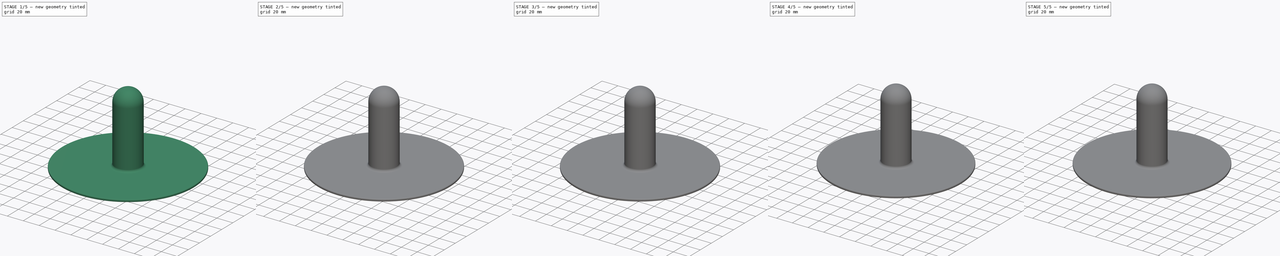
[diagram: build sequence overview — one tinted view per stage of 5, left to right]
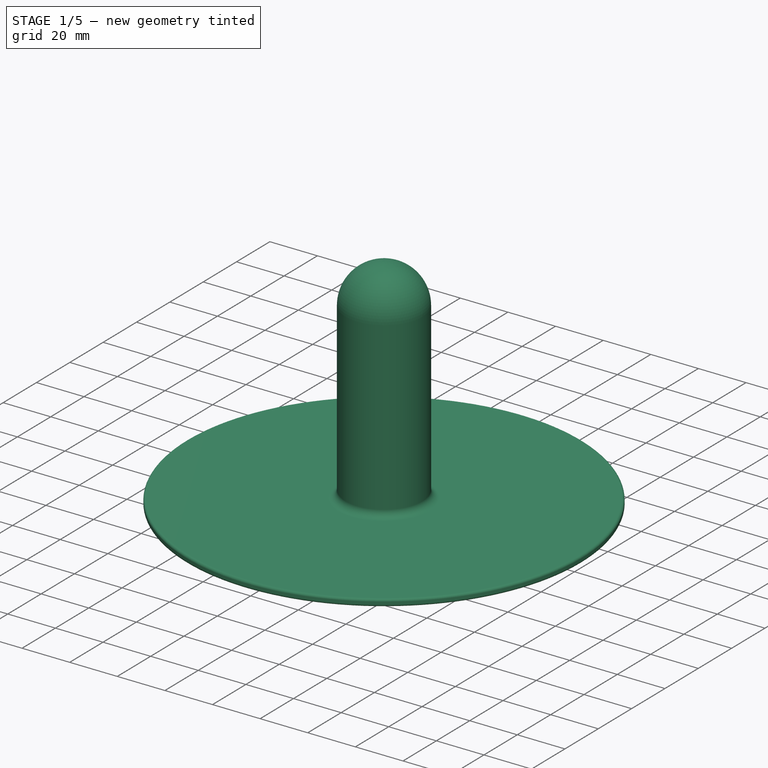
[diagram: stage 1 of 5 — iso view after this stage's code; geometry added in this stage tinted green]
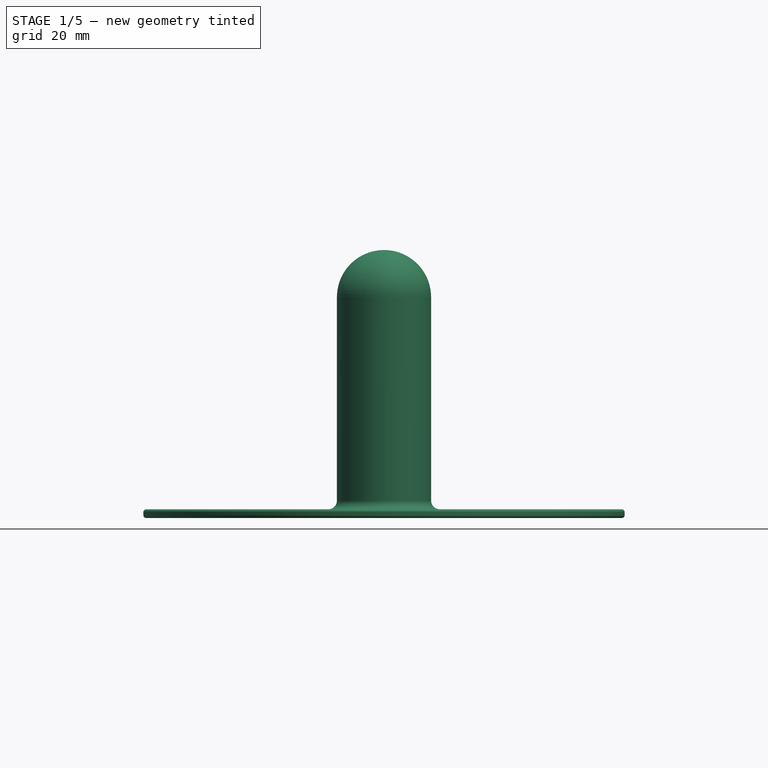
[diagram: stage 1 of 5 — front view after this stage's code; geometry added in this stage tinted green]
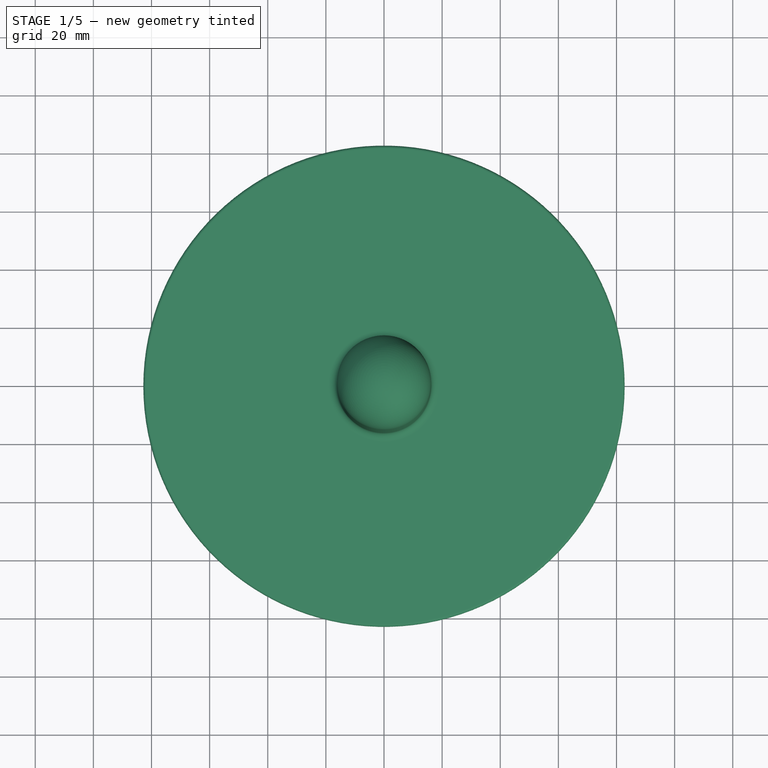
[diagram: stage 1 of 5 — top view after this stage's code; geometry added in this stage tinted green]
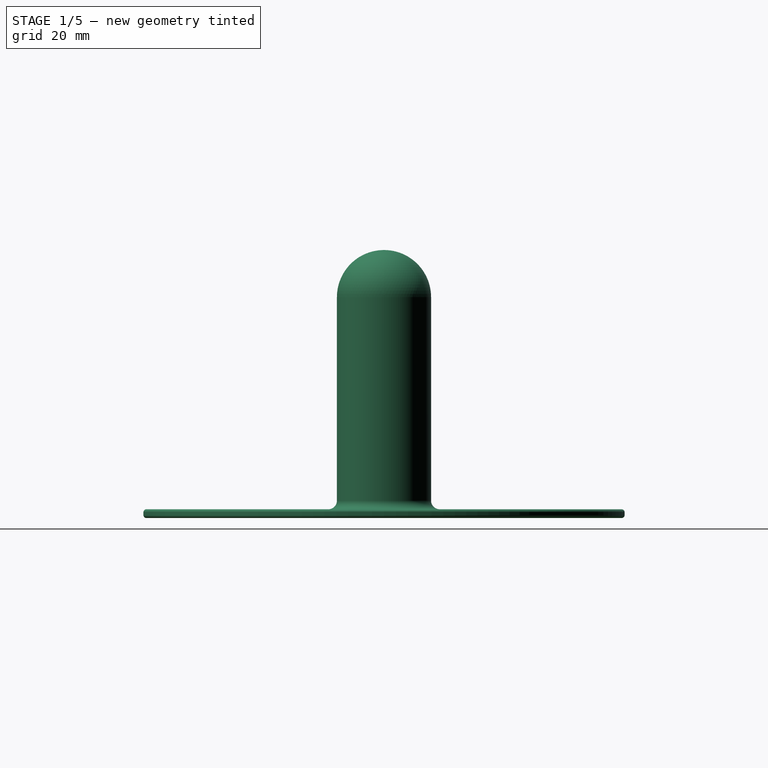
[diagram: stage 1 of 5 — right view after this stage's code; geometry added in this stage tinted green]
FCSTD DOCUMENT  (FreeCAD 0.16R6707 (Git))
Label: Spool Holder
License: Other
LicenseURL: http://ohwr.org/cernohl
objects: Sketcher::SketchObject×11, PartDesign::Pocket×6, PartDesign::Fillet×6, PartDesign::Pad×4, Part::FeaturePython×1, Part::Cylinder×1, Part::Feature×1, PartDesign::Revolution×1
note: 42 computed .brp shape members not serialized (recipe doc carries the construction recipe); baked Part::Feature solids carry a one-line shape summary decoded from their .brp

FEATURE [Part::Cylinder] Cylinder
  Angle = 360
  Height = 7
  Placement = pos=(0,0,22) rot=(0,0,1;0rad)
  Radius = 11
FEATURE [Part::Feature] Part__Feature  label="Acrylic_Cover_Center_Hole"
  Placement = pos=(0,0,3) rot=(0,0,1;0rad)
  shape: bbox 392 x 453 x 3 mm, 18 faces (baked)
FEATURE [Sketcher::SketchObject] Sketch010
  Placement = pos=(0,0,0) rot=(1,0,0;1.5708rad)
  sketch-geometry (13):
    g0: LineSegment StartX=0 StartY=79.2 StartZ=0 EndX=4.2 EndY=79.2 EndZ=0
    g1: LineSegment StartX=4.2 StartY=79.2 StartZ=0 EndX=4.2 EndY=29.2 EndZ=0
    g2: LineSegment StartX=4.2 StartY=29.2 StartZ=0 EndX=11.1 EndY=29.2 EndZ=0
    g3: LineSegment StartX=11.1 StartY=29.2 StartZ=0 EndX=11.1 EndY=14.2 EndZ=0
    g4: LineSegment StartX=11.1 StartY=14.2 StartZ=0 EndX=12.8 EndY=14.2 EndZ=0
    g5: LineSegment StartX=12.8 StartY=14.2 StartZ=0 EndX=12.8 EndY=7 EndZ=0
    g6: LineSegment StartX=12.8 StartY=7 StartZ=0 EndX=82.8 EndY=7 EndZ=0
    g7: LineSegment StartX=82.8 StartY=7 StartZ=0 EndX=82.8 EndY=10 EndZ=0
    g8: LineSegment StartX=82.8 StartY=10 StartZ=0 EndX=16.2 EndY=10 EndZ=0
    g9: LineSegment StartX=16.2 StartY=10 StartZ=0 EndX=16.2 EndY=83 EndZ=0
    g10: LineSegment StartX=0 StartY=79.2 StartZ=0 EndX=0 EndY=99.2 EndZ=0
    g11: LineSegment [constr] StartX=0 StartY=83 StartZ=0 EndX=16.2 EndY=83 EndZ=0
    g12: ArcOfCircle CenterX=0 CenterY=83 CenterZ=0 NormalX=0 NormalY=0 NormalZ=1 Radius=16.2 StartAngle=0 EndAngle=1.5708
  constraints (39):
    c: PointOnObject(g0,g-2)
    c: Horizontal(g0)
    c: Coincident(g0,g1)
    c: Vertical(g1)
    c: Coincident(g1,g2)
    c: Coincident(g2,g3)
    c: Coincident(g3,g4)
    c: Coincident(g4,g5)
    c: Vertical(g5)
    c: Coincident(g5,g6)
    c: Horizontal(g6)
    c: Coincident(g6,g7)
    c: Coincident(g7,g8)
    c: Horizontal(g8)
    c: Vertical(g9)
    c: Coincident(g10,g0)
    c: PointOnObject(g10,g-2)
    c: Coincident(g11,g9)
    c: Horizontal(g11)
    c: Vertical(g7)
    c: DistanceY(g7,g7) = 3
    c: Horizontal(g2)
    c: Vertical(g3)
    c: Horizontal(g4)
    c: DistanceY(g-1,g5) = 7
    c: DistanceX(g-1,g3) = 11.1
    c: DistanceY(g-1,g2) = 29.2
    c: DistanceX(g-1,g5) = 12.8
    c: DistanceY(g3,g3) = 15
    c: DistanceY(g1,g1) = 50
    c: DistanceX(g0,g0) = 4.2
    c: DistanceY(g10,g10) = 20
    c: DistanceX(g6,g6) = 70
    c: PointOnObject(g11,g10)
    c: Coincident(g12,g11)
    c: Coincident(g12,g10)
    c: Coincident(g12,g9)
    c: DistanceX(g0,g9) = 12
    c: Coincident(g8,g9)
FEATURE [PartDesign::Revolution] Revolution
  Angle = 360
  Axis = (0,0,1)
  Base = (0,0,0)
  Placement = pos=(0,0,0) rot=(1,0,0;1.5708rad)
  ReferenceAxis = -> Sketch010 [V_Axis]
  Reversed = true
  Sketch = -> Sketch010
FEATURE [PartDesign::Fillet] Fillet004
  Base = -> Revolution [Edge13]
  Placement = pos=(0,0,0) rot=(1,0,0;1.5708rad)
  Radius = 3
FEATURE [PartDesign::Fillet] Fillet005
  Base = -> Fillet004 [Edge2,Edge5]
  Placement = pos=(0,0,0) rot=(1,0,0;1.5708rad)
  Radius = 1
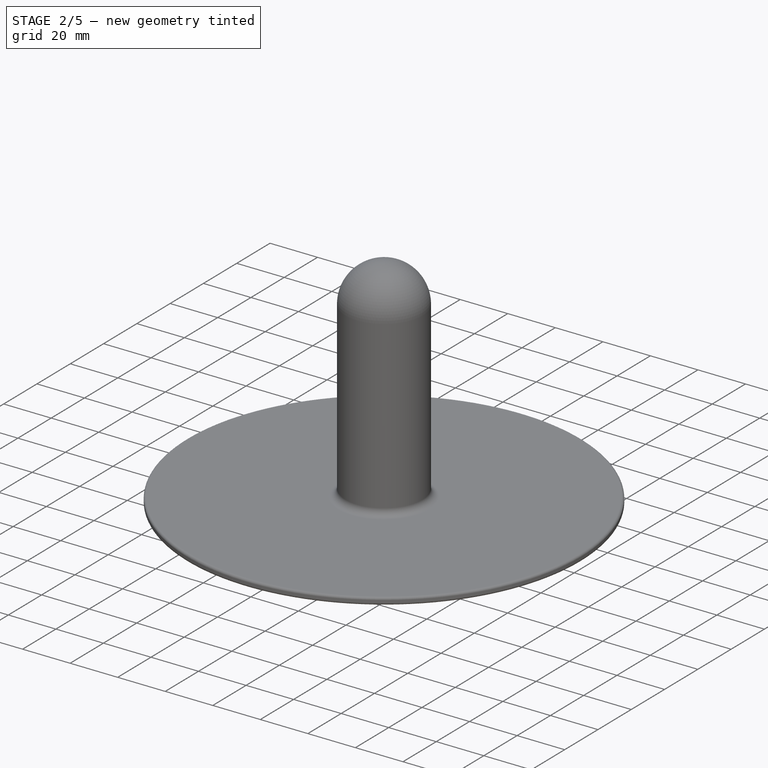
[diagram: stage 2 of 5 — iso view after this stage's code; geometry added in this stage tinted green]
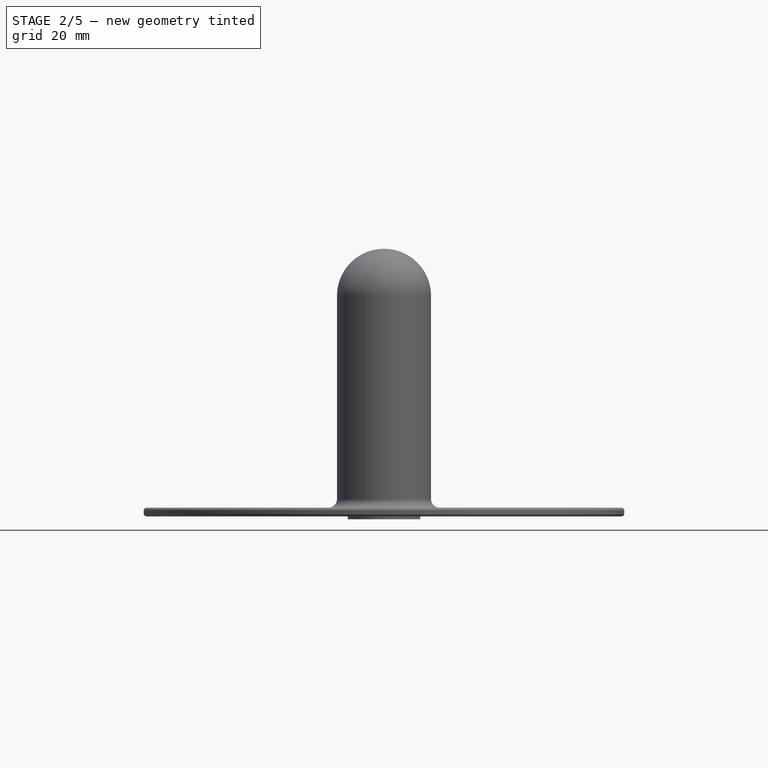
[diagram: stage 2 of 5 — front view after this stage's code; geometry added in this stage tinted green]
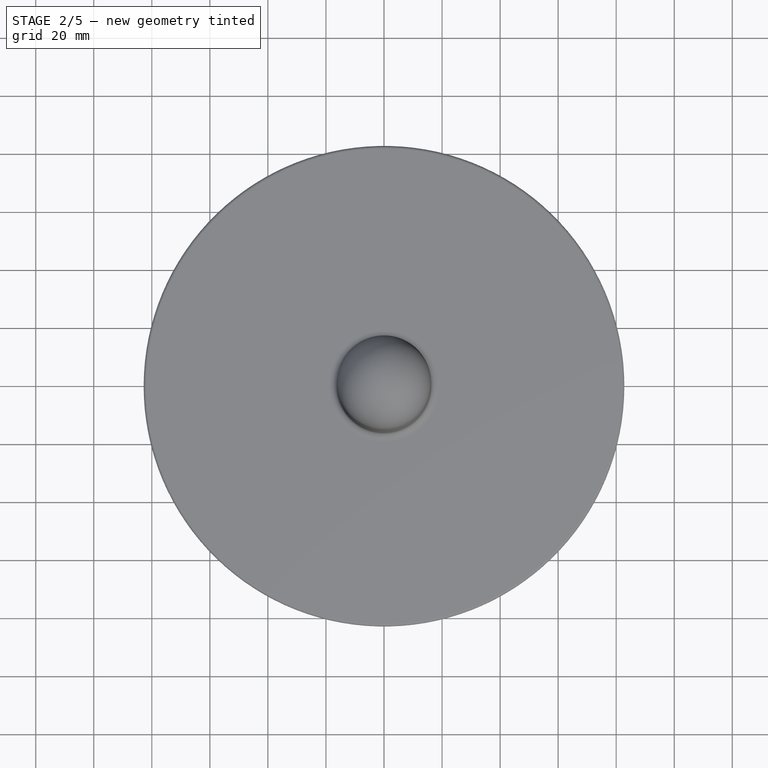
[diagram: stage 2 of 5 — top view after this stage's code; geometry added in this stage tinted green]
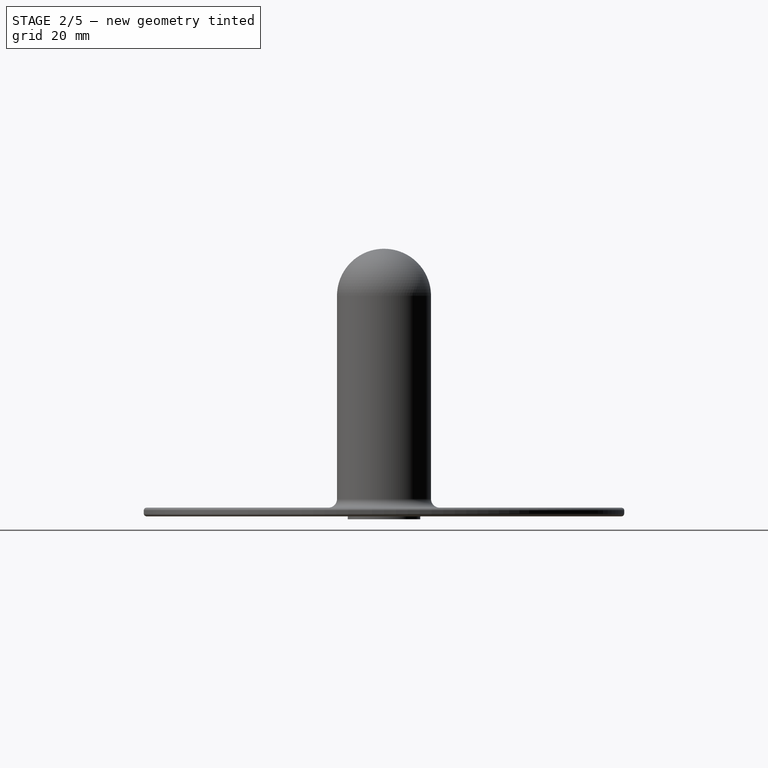
[diagram: stage 2 of 5 — right view after this stage's code; geometry added in this stage tinted green]
FEATURE [Sketcher::SketchObject] Sketch004
  Placement = pos=(0,0,6) rot=(0,0,1;0rad)
  sketch-geometry (1):
    g0: Circle CenterX=0 CenterY=0 CenterZ=0 NormalX=0 NormalY=0 NormalZ=1 Radius=12.5
  constraints (2):
    c: Coincident(g0,g-1)
    c: Radius(g0) = 12.5
FEATURE [PartDesign::Pad] Pad002
  Length = 8
  Length2 = 100
  Placement = pos=(0,0,6) rot=(0,0,1;0rad)
  Sketch = -> Sketch004
  Type = 0
FEATURE [Sketcher::SketchObject] Sketch005
  Placement = pos=(0,0,6) rot=(1,0,0;3.14159rad)
  Support = -> Pad002 [Face2]
  sketch-geometry (1):
    g0: Circle CenterX=0 CenterY=0 CenterZ=0 NormalX=0 NormalY=0 NormalZ=1 Radius=10
  constraints (2):
    c: Radius(g0) = 10
    c: Coincident(g0,g-1)
FEATURE [PartDesign::Pocket] Pocket002
  Length = 3
  Placement = pos=(0,0,6) rot=(0,0,1;0rad)
  Sketch = -> Sketch005
  Type = 0
FEATURE [Sketcher::SketchObject] Sketch006
  Placement = pos=(0,0,14) rot=(0,0,1;0rad)
  Support = -> Pocket002 [Face3]
  sketch-geometry (1):
    g0: Circle CenterX=0 CenterY=0 CenterZ=0 NormalX=0 NormalY=0 NormalZ=1 Radius=10
  constraints (2):
    c: Radius(g0) = 10
    c: Coincident(g0,g-1)
FEATURE [PartDesign::Pad] Pad003
  Length = 8
  Length2 = 100
  Placement = pos=(0,0,6) rot=(0,0,1;0rad)
  Sketch = -> Sketch006
  Type = 0
FEATURE [Sketcher::SketchObject] Sketch009
  Placement = pos=(0,0,29) rot=(0,0,1;0rad)
  Support = -> Cylinder [Face2]
  sketch-geometry (1):
    g0: Circle CenterX=0 CenterY=0 CenterZ=0 NormalX=0 NormalY=0 NormalZ=1 Radius=4
  constraints (2):
    c: Coincident(g0,g-1)
    c: Radius(g0) = 4
FEATURE [PartDesign::Pocket] Pocket005
  Length = 5
  Placement = pos=(0,0,22) rot=(0,0,1;0rad)
  Sketch = -> Sketch009
  Type = 1
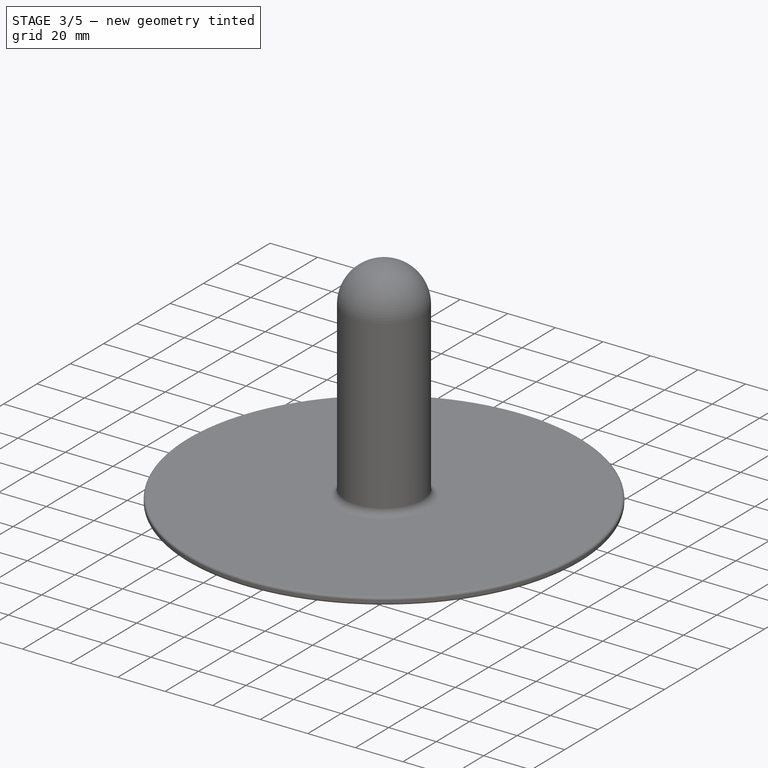
[diagram: stage 3 of 5 — iso view after this stage's code; geometry added in this stage tinted green]
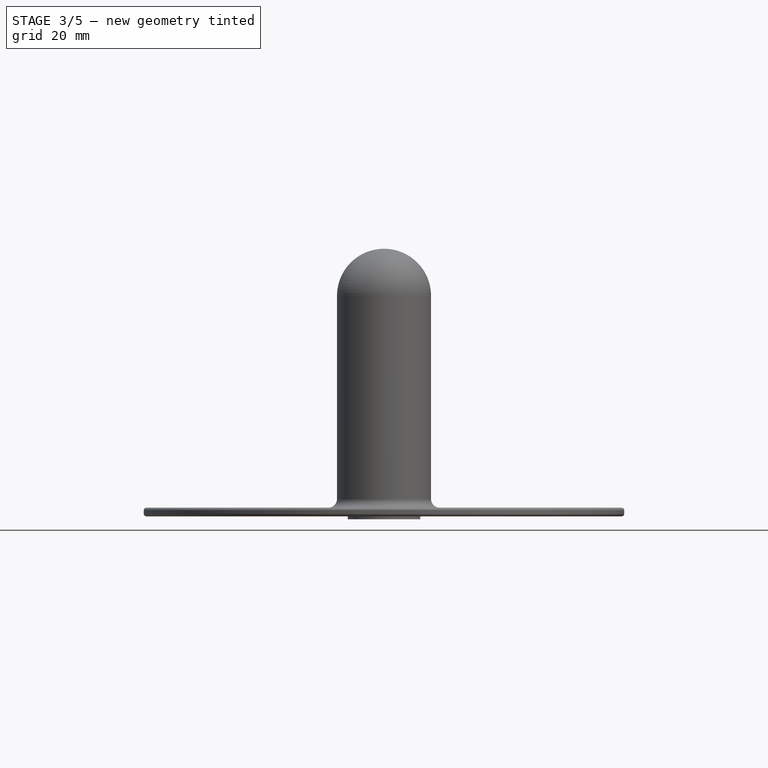
[diagram: stage 3 of 5 — front view after this stage's code; geometry added in this stage tinted green]
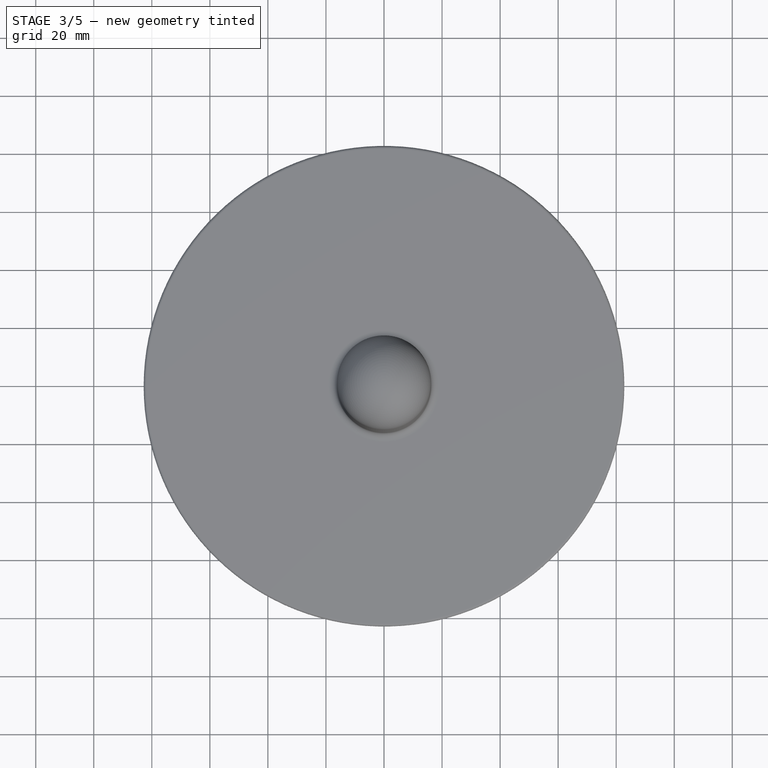
[diagram: stage 3 of 5 — top view after this stage's code; geometry added in this stage tinted green]
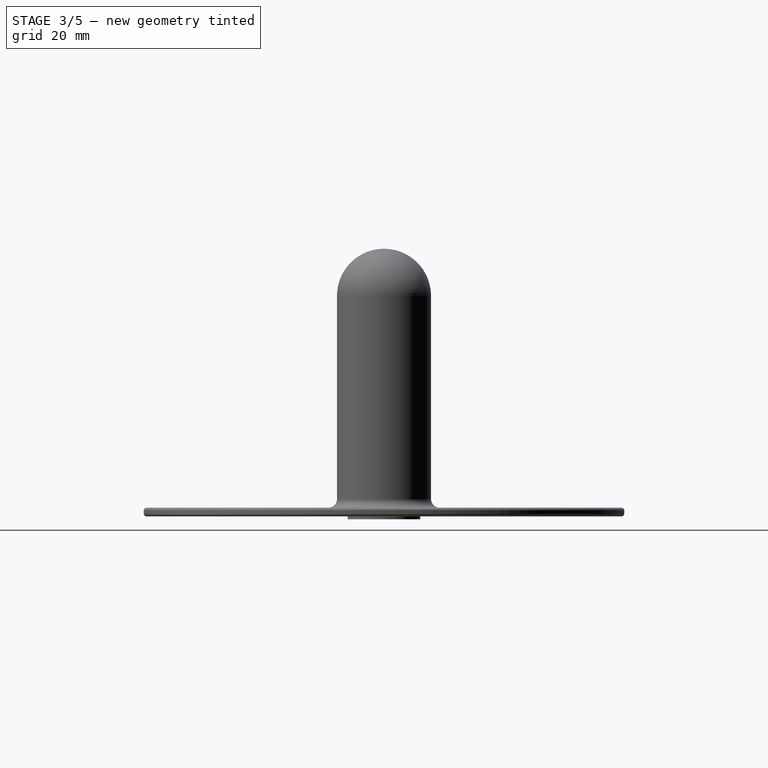
[diagram: stage 3 of 5 — right view after this stage's code; geometry added in this stage tinted green]
FEATURE [Sketcher::SketchObject] Sketch007
  Placement = pos=(0,0,22) rot=(0,0,1;0rad)
  Support = -> Pad003 [Face7]
  sketch-geometry (1):
    g0: Circle CenterX=0 CenterY=0 CenterZ=0 NormalX=0 NormalY=0 NormalZ=1 Radius=4.4
  constraints (2):
    c: Coincident(g0,g-1)
    c: Radius(g0) = 4.4
FEATURE [PartDesign::Pocket] Pocket003
  Length = 5
  Placement = pos=(0,0,6) rot=(0,0,1;0rad)
  Sketch = -> Sketch007
  Type = 1
FEATURE [Sketcher::SketchObject] Sketch008
  Placement = pos=(0,0,22) rot=(0,0,1;0rad)
  Support = -> Pocket003 [Face7]
  sketch-geometry (7):
    g0: LineSegment StartX=4.09919 StartY=-7.1 StartZ=0 EndX=8.19837 EndY=0 EndZ=0
    g1: LineSegment StartX=8.19837 StartY=0 StartZ=0 EndX=4.09919 EndY=7.1 EndZ=0
    g2: LineSegment StartX=4.09919 StartY=7.1 StartZ=0 EndX=-4.09919 EndY=7.1 EndZ=0
    g3: LineSegment StartX=-4.09919 StartY=7.1 StartZ=0 EndX=-8.19837 EndY=0 EndZ=0
    g4: LineSegment StartX=-8.19837 StartY=0 StartZ=0 EndX=-4.09919 EndY=-7.1 EndZ=0
    g5: LineSegment StartX=-4.09919 StartY=-7.1 StartZ=0 EndX=4.09919 EndY=-7.1 EndZ=0
    g6: Circle [constr] CenterX=0 CenterY=0 CenterZ=0 NormalX=0 NormalY=0 NormalZ=1 Radius=8.19837
  constraints (16):
    c: Coincident(g0,g1)
    c: Coincident(g1,g2)
    c: Coincident(g2,g3)
    c: Coincident(g3,g4)
    c: Coincident(g4,g5)
    c: Coincident(g5,g0)
    c: Equal(g0, g1-g5) x5
    c: PointOnObject(g0,g6)
    c: PointOnObject(g1,g6)
    c: PointOnObject(g2,g6)
    c: PointOnObject(g3,g6)
    c: PointOnObject(g4,g6)
    c: PointOnObject(g5,g6)
    c: Horizontal(g5)
    c: DistanceY(g0,g1) = 14.2
    c: Coincident(g6,g-1)
FEATURE [PartDesign::Pocket] Pocket004
  Length = 7
  Placement = pos=(0,0,6) rot=(0,0,1;0rad)
  Sketch = -> Sketch008
  Type = 0
FEATURE [PartDesign::Fillet] Fillet002
  Base = -> Pocket004 [Edge9]
  Placement = pos=(0,0,6) rot=(0,0,1;0rad)
  Radius = 1.5
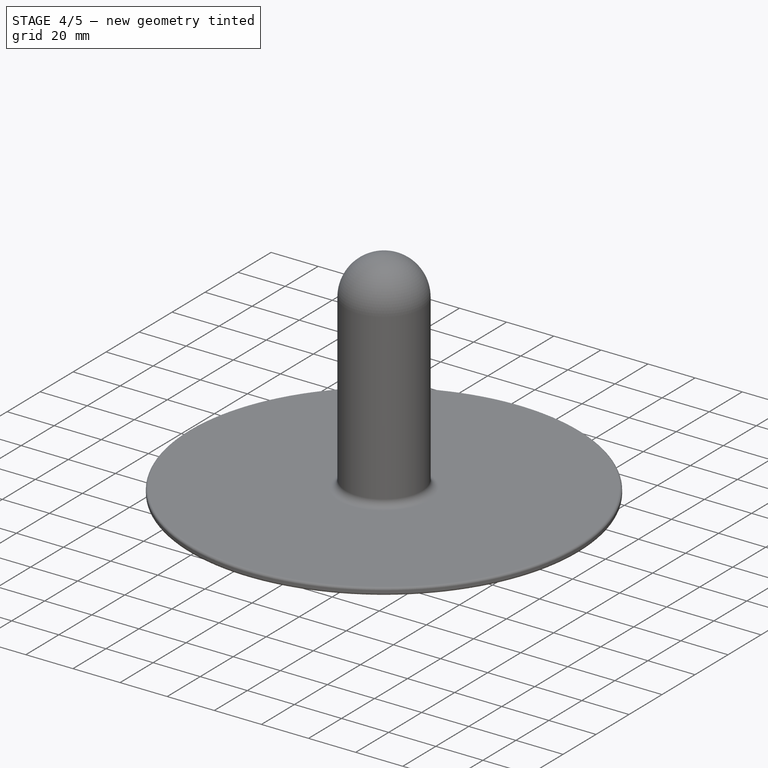
[diagram: stage 4 of 5 — iso view after this stage's code; geometry added in this stage tinted green]
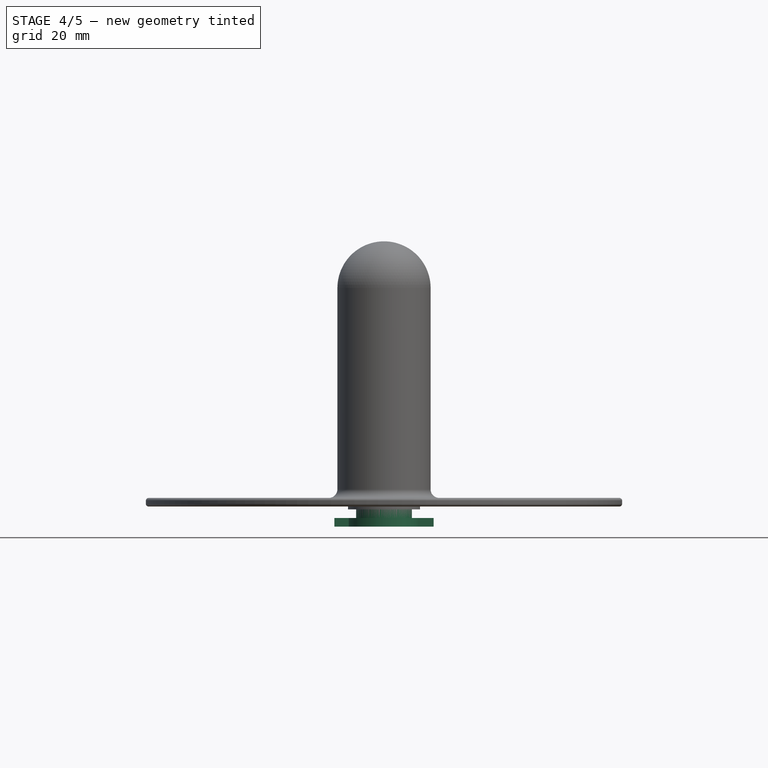
[diagram: stage 4 of 5 — front view after this stage's code; geometry added in this stage tinted green]
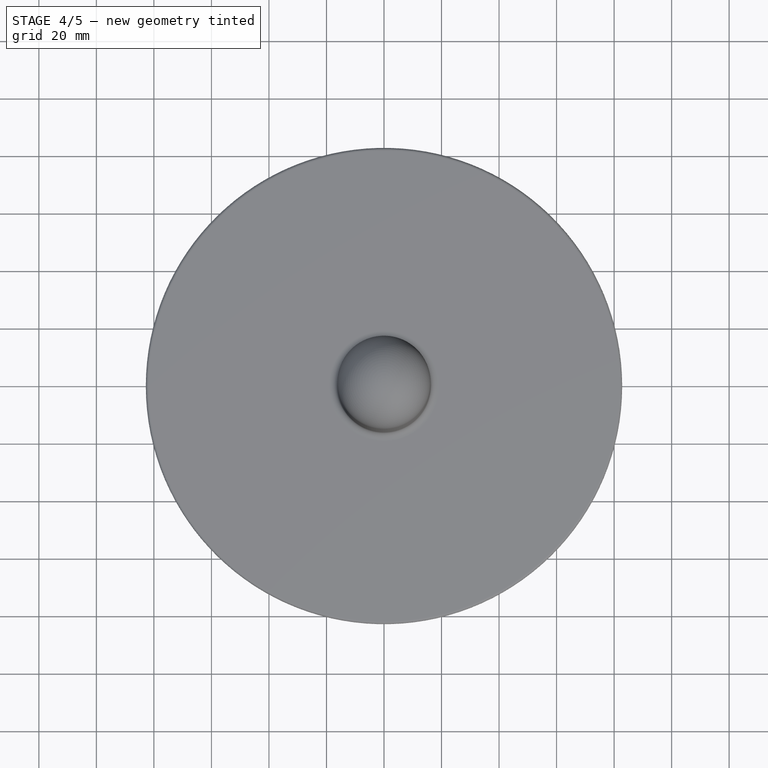
[diagram: stage 4 of 5 — top view after this stage's code; geometry added in this stage tinted green]
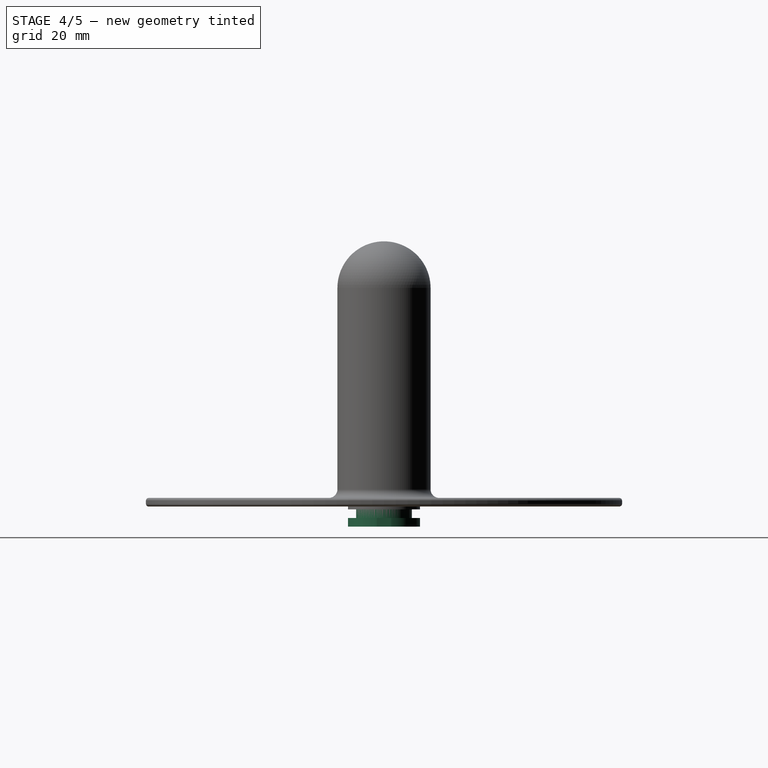
[diagram: stage 4 of 5 — right view after this stage's code; geometry added in this stage tinted green]
FEATURE [Sketcher::SketchObject] Sketch
  sketch-geometry (8):
    g0: ArcOfCircle CenterX=0 CenterY=0 CenterZ=0 NormalX=0 NormalY=0 NormalZ=1 Radius=12.5 StartAngle=0.201358 EndAngle=2.94023
    g1: LineSegment StartX=-12.2474 StartY=2.5 StartZ=0 EndX=-17.2474 EndY=2.5 EndZ=0
    g2: LineSegment StartX=-17.2474 StartY=2.5 StartZ=0 EndX=-17.2474 EndY=-2.5 EndZ=0
    g3: LineSegment StartX=-17.2474 StartY=-2.5 StartZ=0 EndX=-12.2474 EndY=-2.5 EndZ=0
    g4: LineSegment StartX=12.2474 StartY=2.5 StartZ=0 EndX=17.2474 EndY=2.5 EndZ=0
    g5: LineSegment StartX=17.2474 StartY=2.5 StartZ=0 EndX=17.2474 EndY=-2.5 EndZ=0
    g6: LineSegment StartX=17.2474 StartY=-2.5 StartZ=0 EndX=12.2474 EndY=-2.5 EndZ=0
    g7: ArcOfCircle CenterX=0 CenterY=0 CenterZ=0 NormalX=0 NormalY=0 NormalZ=1 Radius=12.5 StartAngle=3.34295 EndAngle=6.08183
  constraints (23):
    c: Coincident(g0,g-1)
    c: Radius(g0) = 12.5
    c: Horizontal(g1)
    c: Coincident(g1,g2)
    c: Coincident(g2,g3)
    c: Horizontal(g3)
    c: Horizontal(g4)
    c: Coincident(g4,g5)
    c: Coincident(g5,g6)
    c: Horizontal(g6)
    c: Vertical(g5)
    c: Vertical(g2)
    c: Coincident(g0,g4)
    c: Coincident(g7,g6)
    c: Equal(g0,g7)
    c: Coincident(g0,g1)
    c: Coincident(g7,g3)
    c: Coincident(g0,g7)
    c: Equal(g2,g5)
    c: Symmetric(g2,g5,g-2)
    c: Symmetric(g2,g1,g-1)
    c: DistanceY(g2,g2) = 5
    c: DistanceX(g3,g3) = 5
FEATURE [PartDesign::Pad] Pad
  Length = 3
  Length2 = 100
  Sketch = -> Sketch
  Type = 0
FEATURE [Sketcher::SketchObject] Sketch001
  Placement = pos=(0,0,3) rot=(0,0,1;0rad)
  Support = -> Pad [Face10]
  sketch-geometry (1):
    g0: Circle CenterX=0 CenterY=0 CenterZ=0 NormalX=0 NormalY=0 NormalZ=1 Radius=9.7
  constraints (2):
    c: Coincident(g0,g-1)
    c: Radius(g0) = 9.7
FEATURE [PartDesign::Pad] Pad001
  Length = 5
  Length2 = 100
  Sketch = -> Sketch001
  Type = 0
FEATURE [Sketcher::SketchObject] Sketch002
  Placement = pos=(0,0,8) rot=(0,0,1;0rad)
  Support = -> Pad001 [Face12]
  sketch-geometry (1):
    g0: Circle CenterX=0 CenterY=0 CenterZ=0 NormalX=0 NormalY=0 NormalZ=1 Radius=4.5
  constraints (2):
    c: Coincident(g0,g-1)
    c: Radius(g0) = 4.5
FEATURE [PartDesign::Pocket] Pocket
  Length = 5
  Sketch = -> Sketch002
  Type = 1
FEATURE [PartDesign::Fillet] Fillet003
  Base = -> Fillet002 [Edge6,Edge3]
  Placement = pos=(0,0,6) rot=(0,0,1;0rad)
  Radius = 1.2
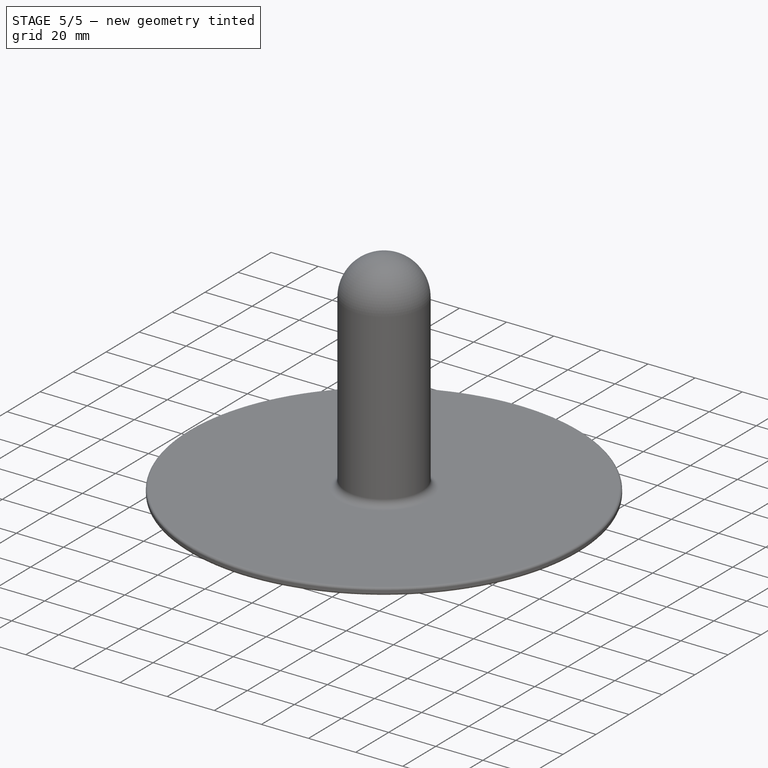
[diagram: stage 5 of 5 — iso view after this stage's code; geometry added in this stage tinted green]
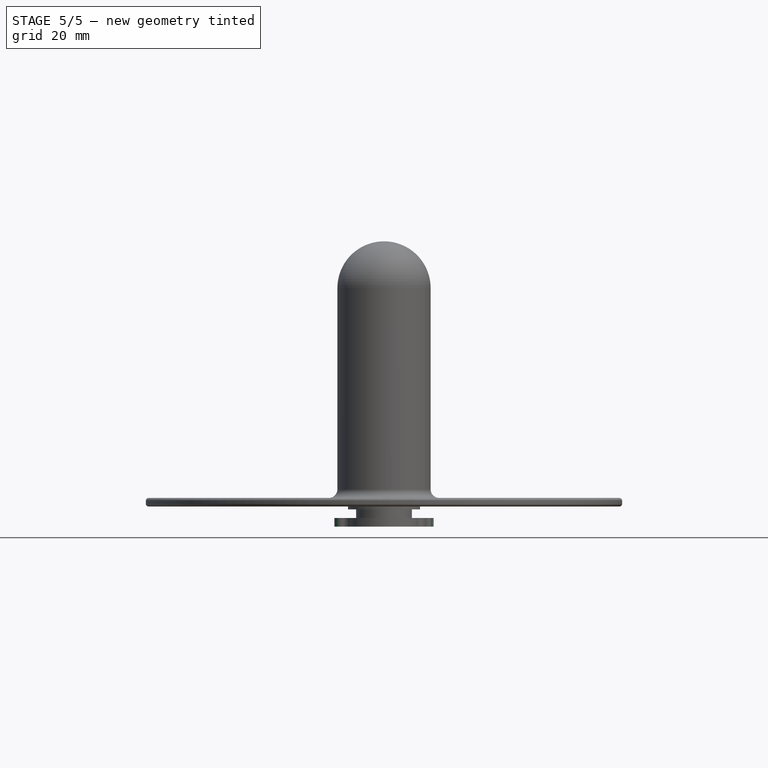
[diagram: stage 5 of 5 — front view after this stage's code; geometry added in this stage tinted green]
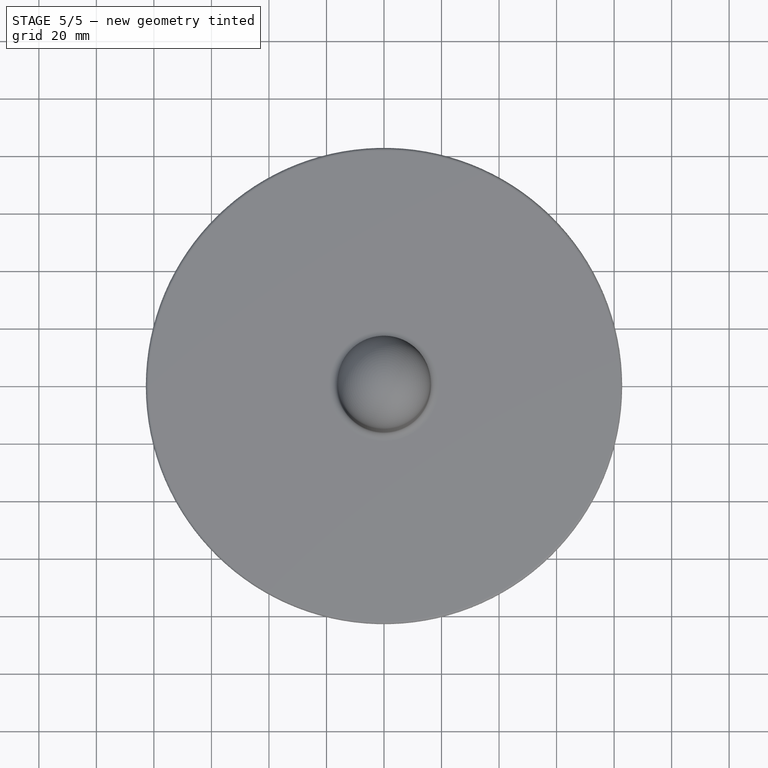
[diagram: stage 5 of 5 — top view after this stage's code; geometry added in this stage tinted green]
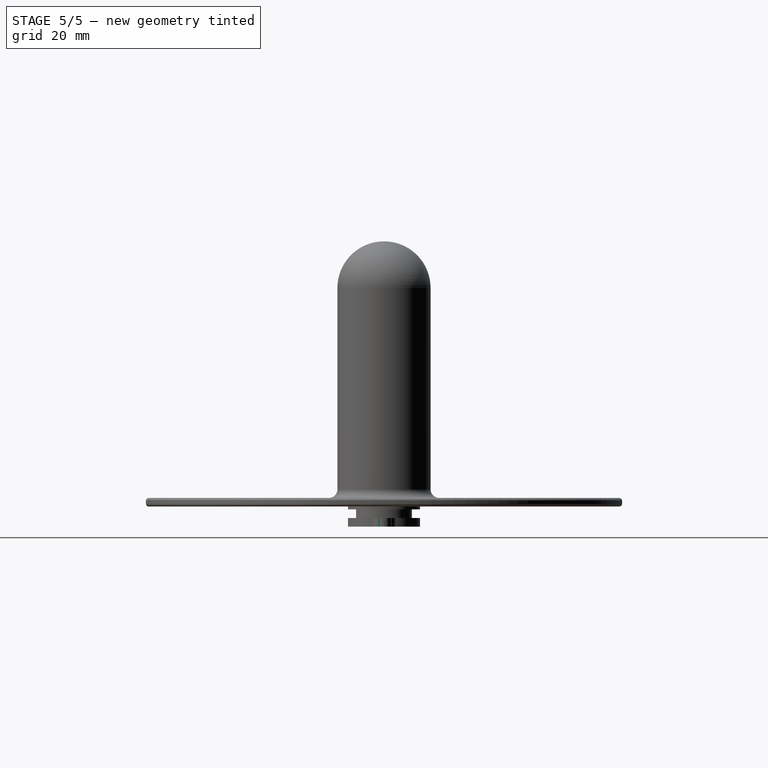
[diagram: stage 5 of 5 — right view after this stage's code; geometry added in this stage tinted green]
FEATURE [Sketcher::SketchObject] Sketch003
  Placement = pos=(0,0,0) rot=(1,0,0;3.14159rad)
  Support = -> Pocket [Face4]
  sketch-geometry (7):
    g0: LineSegment StartX=3.81051 StartY=-6.6 StartZ=0 EndX=7.62102 EndY=0 EndZ=0
    g1: LineSegment StartX=7.62102 StartY=0 StartZ=0 EndX=3.81051 EndY=6.6 EndZ=0
    g2: LineSegment StartX=3.81051 StartY=6.6 StartZ=0 EndX=-3.81051 EndY=6.6 EndZ=0
    g3: LineSegment StartX=-3.81051 StartY=6.6 StartZ=0 EndX=-7.62102 EndY=0 EndZ=0
    g4: LineSegment StartX=-7.62102 StartY=0 StartZ=0 EndX=-3.81051 EndY=-6.6 EndZ=0
    g5: LineSegment StartX=-3.81051 StartY=-6.6 StartZ=0 EndX=3.81051 EndY=-6.6 EndZ=0
    g6: Circle [constr] CenterX=0 CenterY=0 CenterZ=0 NormalX=0 NormalY=0 NormalZ=1 Radius=7.62102
  constraints (16):
    c: Coincident(g0,g1)
    c: Coincident(g1,g2)
    c: Coincident(g2,g3)
    c: Coincident(g3,g4)
    c: Coincident(g4,g5)
    c: Coincident(g5,g0)
    c: Equal(g0, g1-g5) x5
    c: PointOnObject(g0,g6)
    c: PointOnObject(g1,g6)
    c: PointOnObject(g2,g6)
    c: PointOnObject(g3,g6)
    c: PointOnObject(g5,g6)
    c: Coincident(g6,g-1)
    c: PointOnObject(g4,g6)
    c: Horizontal(g5)
    c: DistanceY(g0,g1) = 13.2
FEATURE [PartDesign::Pocket] Pocket001
  Length = 5
  Sketch = -> Sketch003
  Type = 0
FEATURE [Part::FeaturePython] Nut  label="M8-Nut"  # Fasteners workbench fastener (typed FeaturePython)
  diameter = 9
  invert = false
  matchOuter = false
  offset = 0
  thread = false
  type = 3
FEATURE [PartDesign::Fillet] Fillet
  Base = -> Pocket001 [Edge45]
  Radius = 1
FEATURE [PartDesign::Fillet] Fillet001
  Base = -> Fillet [Edge15,Edge18,Edge22,Edge26,Edge28,Edge24,Edge20,Edge16]
  Radius = 2.49
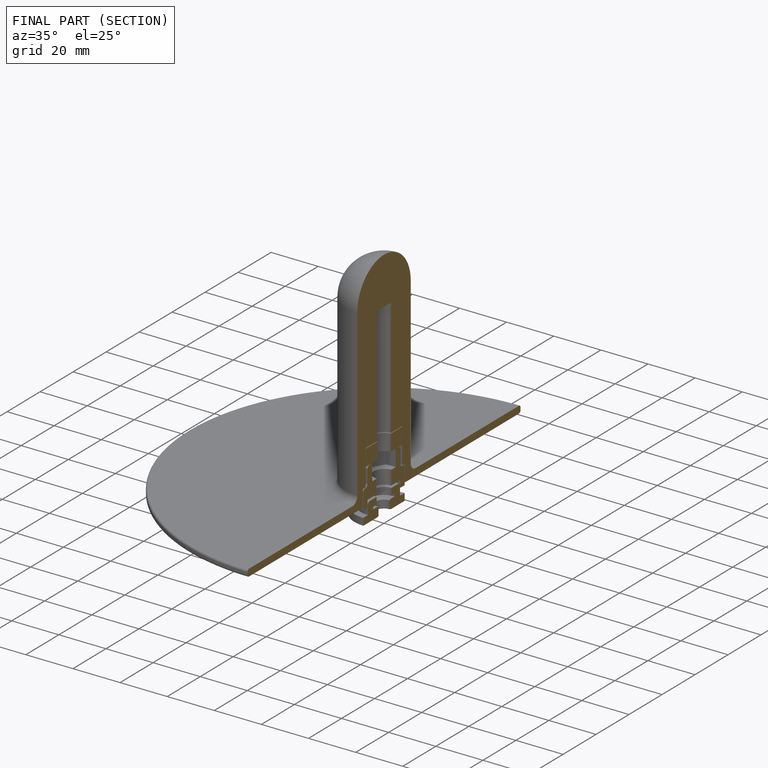
[diagram: finished part — half-section view (interior)]
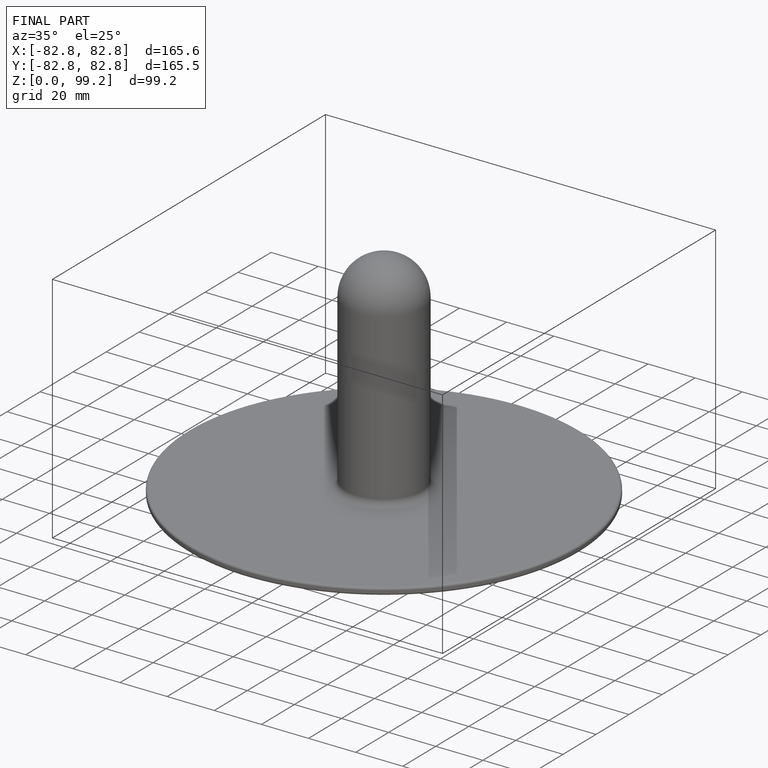
[diagram: finished part — iso view with bounding-box wireframe]
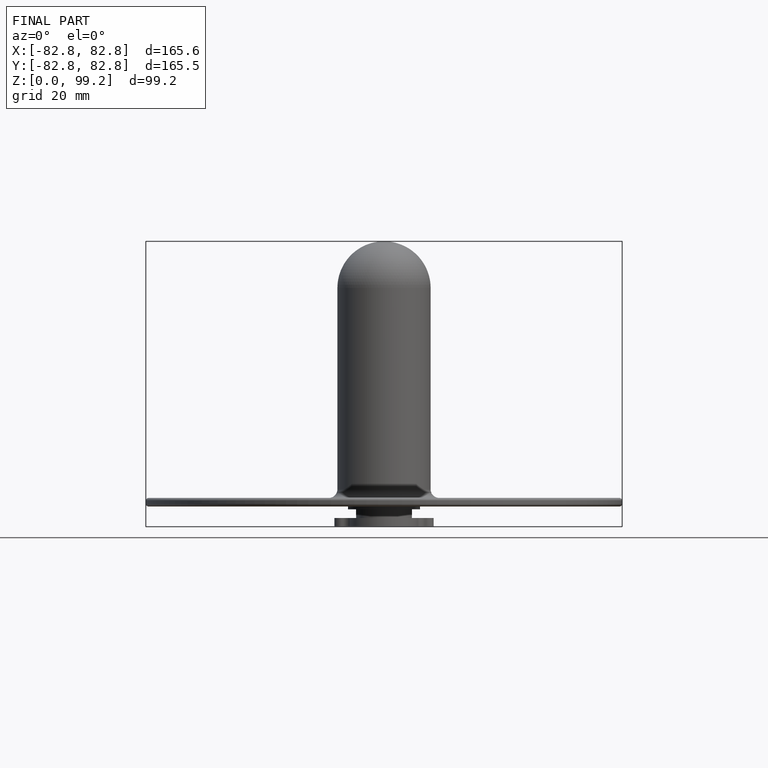
[diagram: finished part — front view with bounding-box wireframe]
